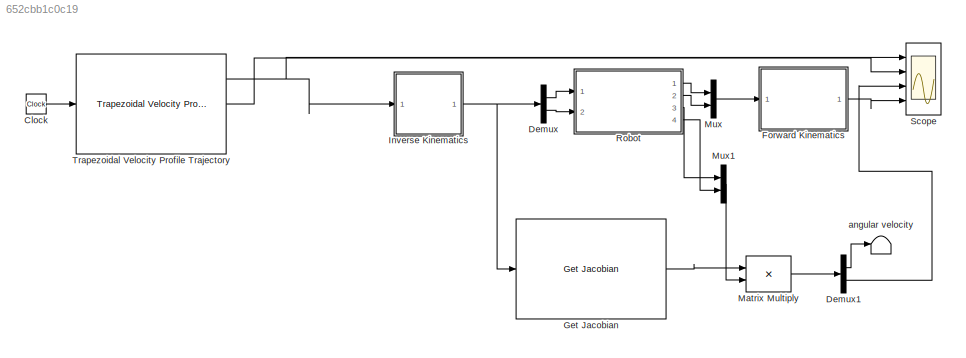
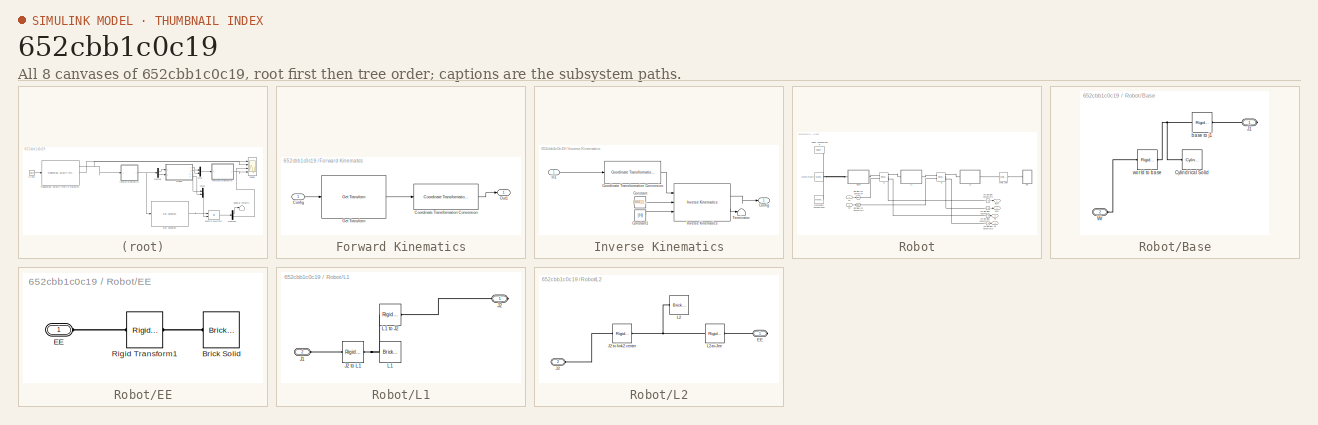
[diagram: thumbnail index - all 8 canvases of the model, root first then tree order]
MODEL slx_652cbb1c0c19
KIND model
CONFIG AbsTol = auto
CONFIG EnableMultiTasking = off
CONFIG FixedStep = auto
CONFIG MaxStep = auto
CONFIG MinStep = auto
CONFIG RelTol = 1e-3
CONFIG SampleTimeConstraint = Unconstrained
CONFIG SolverName = VariableStepAuto
CONFIG StartTime = 0.0
CONFIG StopTime = 10.0
BLOCK [Clock] Clock
BLOCK [Demux] Demux
  Outputs = 2
  Ports = [1, 2]
BLOCK [Demux] Demux1
  Outputs = 2
  Ports = [1, 2]
BLOCK [SubSystem] Forward Kinematics
  Ports = [1, 1]
  RequestExecContextInheritance = off
BLOCK [Inport] Forward Kinematics/Config
BLOCK [Reference] Forward Kinematics/Coordinate Transformation Conversion  REF=robotcorelib/Coordinate Transformation Conversion
  Ports = [1, 1]
  SourceBlock = robotcorelib/Coordinate Transformation Conversion
  SourceProductBaseCode = RO,NV,RR,UV
  SourceType = robotics.slcore.internal.block.CoordinateTransformationConversion
BLOCK [Reference] Forward Kinematics/Get Transform  REF=robotmaniplib/Get Transform
  Ports = [1, 1]
  SourceBlock = robotmaniplib/Get Transform
  SourceProductBaseCode = RO
  SourceType = Get Transform
BLOCK [Outport] Forward Kinematics/Out1
BLOCK [Reference] Get Jacobian  REF=robotmaniplib/Get Jacobian
  Ports = [1, 1]
  SourceBlock = robotmaniplib/Get Jacobian
  SourceProductBaseCode = RO
  SourceType = Get Jacobian
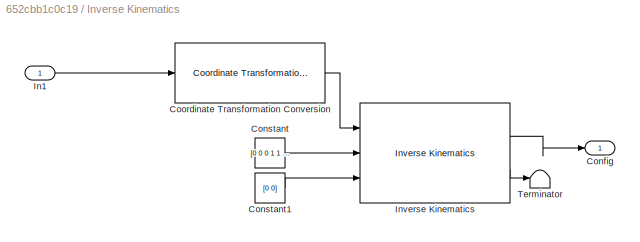
BLOCK [SubSystem] Inverse Kinematics
  Ports = [1, 1]
  RequestExecContextInheritance = off
BLOCK [Outport] Inverse Kinematics/Config
BLOCK [Constant] Inverse Kinematics/Constant
  Value = [0 0 0 1 1 1]
BLOCK [Constant] Inverse Kinematics/Constant1
  Value = [0 0]
BLOCK [Reference] Inverse Kinematics/Coordinate Transformation Conversion  REF=robotcorelib/Coordinate Transformation Conversion
  Ports = [1, 1]
  SourceBlock = robotcorelib/Coordinate Transformation Conversion
  SourceProductBaseCode = RO,NV,RR,UV
  SourceType = robotics.slcore.internal.block.CoordinateTransformationConversion
BLOCK [Inport] Inverse Kinematics/In1
BLOCK [Reference] Inverse Kinematics/Inverse Kinematics  REF=robotmaniplib/Inverse Kinematics
  Ports = [3, 2]
  SourceBlock = robotmaniplib/Inverse Kinematics
  SourceProductBaseCode = RO
  SourceType = Inverse Kinematics
BLOCK [Terminator] Inverse Kinematics/Terminator
BLOCK [Product] Matrix Multiply
  Multiplication = Matrix(*)
  Ports = [2, 1]
BLOCK [Mux] Mux
  DisplayOption = bar
  Inputs = 2
  Ports = [2, 1]
BLOCK [Mux] Mux1
  DisplayOption = bar
  Inputs = 2
  Ports = [2, 1]
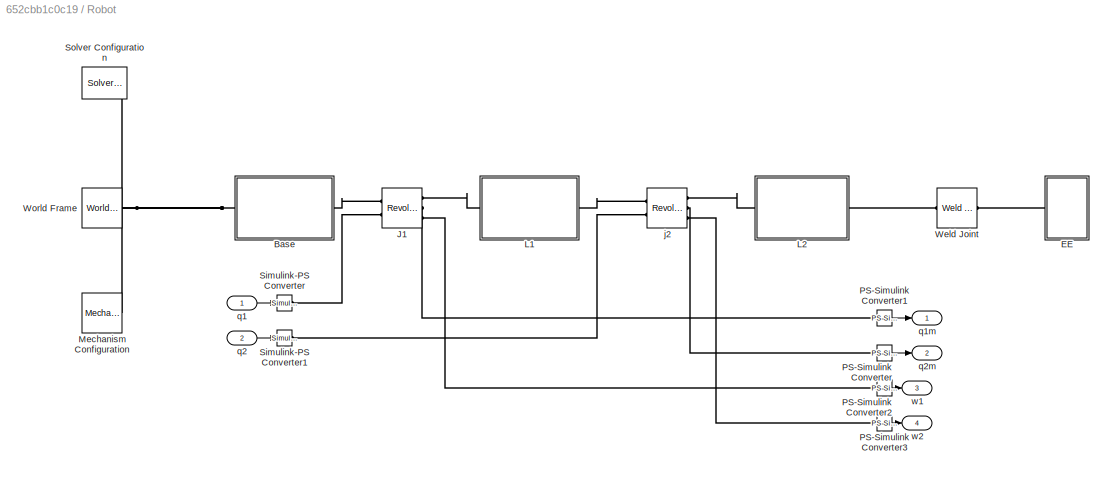
BLOCK [SubSystem] Robot
  Ports = [2, 4]
  RequestExecContextInheritance = off
BLOCK [SubSystem] Robot/Base
  Ports = [0, 0, 0, 0, 0, 1, 1]
  RequestExecContextInheritance = off
BLOCK [Reference] Robot/Base/Cylindrical Solid  REF=sm_lib/Body Elements/Cylindrical Solid
  Ports = [0, 0, 0, 0, 0, 0, 1]
  SourceBlock = sm_lib/Body Elements/Cylindrical Solid
  SourceProductBaseCode = MS
  SourceType = Cylindrical Solid
BLOCK [PMIOPort] Robot/Base/J1
  Side = Right
BLOCK [PMIOPort] Robot/Base/Wr
  Port = 2
  Side = Left
BLOCK [Reference] Robot/Base/base to j1  REF=sm_lib/Frames and
Transforms/Rigid
Transform
  Ports = [0, 0, 0, 0, 0, 1, 1]
  SourceBlock = sm_lib/Frames and\nTransforms/Rigid\nTransform
  SourceProductBaseCode = MS
  SourceType = Rigid\nTransform
BLOCK [Reference] Robot/Base/world to base  REF=sm_lib/Frames and
Transforms/Rigid
Transform
  Ports = [0, 0, 0, 0, 0, 1, 1]
  SourceBlock = sm_lib/Frames and\nTransforms/Rigid\nTransform
  SourceProductBaseCode = MS
  SourceType = Rigid\nTransform
BLOCK [SubSystem] Robot/EE
  Ports = [0, 0, 0, 0, 0, 1]
  RequestExecContextInheritance = off
BLOCK [Reference] Robot/EE/Brick Solid  REF=sm_lib/Body Elements/Brick Solid
  Ports = [0, 0, 0, 0, 0, 0, 1]
  SourceBlock = sm_lib/Body Elements/Brick Solid
  SourceProductBaseCode = MS
  SourceType = Brick Solid
BLOCK [PMIOPort] Robot/EE/EE
  Side = Left
BLOCK [Reference] Robot/EE/Rigid Transform1  REF=sm_lib/Frames and
Transforms/Rigid
Transform
  Ports = [0, 0, 0, 0, 0, 1, 1]
  SourceBlock = sm_lib/Frames and\nTransforms/Rigid\nTransform
  SourceProductBaseCode = MS
  SourceType = Rigid\nTransform
BLOCK [Reference] Robot/J1  REF=sm_lib/Joints/Revolute Joint
  Ports = [0, 0, 0, 0, 0, 2, 3]
  SourceBlock = sm_lib/Joints/Revolute Joint
  SourceProductBaseCode = MS
  SourceType = Revolute Joint
BLOCK [SubSystem] Robot/L1
  Ports = [0, 0, 0, 0, 0, 1, 1]
  RequestExecContextInheritance = off
BLOCK [PMIOPort] Robot/L1/J1
  Port = 2
  Side = Left
BLOCK [PMIOPort] Robot/L1/J2
  Side = Right
BLOCK [Reference] Robot/L1/J2 to L1  REF=sm_lib/Frames and
Transforms/Rigid
Transform
  Ports = [0, 0, 0, 0, 0, 1, 1]
  SourceBlock = sm_lib/Frames and\nTransforms/Rigid\nTransform
  SourceProductBaseCode = MS
  SourceType = Rigid\nTransform
BLOCK [Reference] Robot/L1/L1  REF=sm_lib/Body Elements/Brick Solid
  Ports = [0, 0, 0, 0, 0, 0, 1]
  SourceBlock = sm_lib/Body Elements/Brick Solid
  SourceProductBaseCode = MS
  SourceType = Brick Solid
BLOCK [Reference] Robot/L1/L1 to J2  REF=sm_lib/Frames and
Transforms/Rigid
Transform
  Ports = [0, 0, 0, 0, 0, 1, 1]
  SourceBlock = sm_lib/Frames and\nTransforms/Rigid\nTransform
  SourceProductBaseCode = MS
  SourceType = Rigid\nTransform
BLOCK [SubSystem] Robot/L2
  Ports = [0, 0, 0, 0, 0, 1, 1]
  RequestExecContextInheritance = off
BLOCK [PMIOPort] Robot/L2/EE
  Side = Right
BLOCK [PMIOPort] Robot/L2/J2
  Port = 2
  Side = Left
BLOCK [Reference] Robot/L2/J2 to link2 center  REF=sm_lib/Frames and
Transforms/Rigid
Transform
  Ports = [0, 0, 0, 0, 0, 1, 1]
  SourceBlock = sm_lib/Frames and\nTransforms/Rigid\nTransform
  SourceProductBaseCode = MS
  SourceType = Rigid\nTransform
BLOCK [Reference] Robot/L2/L2  REF=sm_lib/Body Elements/Brick Solid
  Ports = [0, 0, 0, 0, 0, 0, 1]
  SourceBlock = sm_lib/Body Elements/Brick Solid
  SourceProductBaseCode = MS
  SourceType = Brick Solid
BLOCK [Reference] Robot/L2/L2-to-Jee  REF=sm_lib/Frames and
Transforms/Rigid
Transform
  Ports = [0, 0, 0, 0, 0, 1, 1]
  SourceBlock = sm_lib/Frames and\nTransforms/Rigid\nTransform
  SourceProductBaseCode = MS
  SourceType = Rigid\nTransform
BLOCK [Reference] Robot/Mechanism Configuration  REF=sm_lib/Utilities/Mechanism
Configuration
  Ports = [0, 0, 0, 0, 0, 0, 1]
  SourceBlock = sm_lib/Utilities/Mechanism\nConfiguration
  SourceProductBaseCode = MS
  SourceType = Mechanism\nConfiguration
BLOCK [Reference] Robot/PS-Simulink Converter  REF=nesl_utility/PS-Simulink
Converter
  Ports = [0, 1, 0, 0, 0, 1]
  SourceBlock = nesl_utility/PS-Simulink\nConverter
  SourceProductBaseCode = SS,PW,VE
  SourceType = PS-Simulink\nConverter
BLOCK [Reference] Robot/PS-Simulink Converter1  REF=nesl_utility/PS-Simulink
Converter
  Ports = [0, 1, 0, 0, 0, 1]
  SourceBlock = nesl_utility/PS-Simulink\nConverter
  SourceProductBaseCode = SS,PW,VE
  SourceType = PS-Simulink\nConverter
BLOCK [Reference] Robot/PS-Simulink Converter2  REF=nesl_utility/PS-Simulink
Converter
  Ports = [0, 1, 0, 0, 0, 1]
  SourceBlock = nesl_utility/PS-Simulink\nConverter
  SourceProductBaseCode = SS,PW,VE
  SourceType = PS-Simulink\nConverter
BLOCK [Reference] Robot/PS-Simulink Converter3  REF=nesl_utility/PS-Simulink
Converter
  Ports = [0, 1, 0, 0, 0, 1]
  SourceBlock = nesl_utility/PS-Simulink\nConverter
  SourceProductBaseCode = SS,PW,VE
  SourceType = PS-Simulink\nConverter
BLOCK [Reference] Robot/Simulink-PS Converter  REF=nesl_utility/Simulink-PS
Converter
  Ports = [1, 0, 0, 0, 0, 0, 1]
  SourceBlock = nesl_utility/Simulink-PS\nConverter
  SourceProductBaseCode = SS,PW,VE
  SourceType = Simulink-PS\nConverter
BLOCK [Reference] Robot/Simulink-PS Converter1  REF=nesl_utility/Simulink-PS
Converter
  Ports = [1, 0, 0, 0, 0, 0, 1]
  SourceBlock = nesl_utility/Simulink-PS\nConverter
  SourceProductBaseCode = SS,PW,VE
  SourceType = Simulink-PS\nConverter
BLOCK [Reference] Robot/Solver Configuration  REF=nesl_utility/Solver
Configuration
  Ports = [0, 0, 0, 0, 0, 0, 1]
  SourceBlock = nesl_utility/Solver\nConfiguration
  SourceProductBaseCode = SS,PW,VE
  SourceType = Solver\nConfiguration
BLOCK [Reference] Robot/Weld Joint  REF=sm_lib/Joints/Weld Joint
  Ports = [0, 0, 0, 0, 0, 1, 1]
  SourceBlock = sm_lib/Joints/Weld Joint
  SourceProductBaseCode = MS
  SourceType = Weld Joint
BLOCK [Reference] Robot/World Frame  REF=sm_lib/Frames and
Transforms/World Frame
  Ports = [0, 0, 0, 0, 0, 0, 1]
  SourceBlock = sm_lib/Frames and\nTransforms/World Frame
  SourceProductBaseCode = MS
  SourceType = World Frame
BLOCK [Reference] Robot/j2  REF=sm_lib/Joints/Revolute Joint
  Ports = [0, 0, 0, 0, 0, 2, 3]
  SourceBlock = sm_lib/Joints/Revolute Joint
  SourceProductBaseCode = MS
  SourceType = Revolute Joint
BLOCK [Inport] Robot/q1
BLOCK [Outport] Robot/q1m
BLOCK [Inport] Robot/q2
  Port = 2
BLOCK [Outport] Robot/q2m
  Port = 2
BLOCK [Outport] Robot/w1
  Port = 3
BLOCK [Outport] Robot/w2
  Port = 4
BLOCK [Scope] Scope
  Floating = off
  NumInputPorts = 4
  Ports = [4]
  ScopeSpecificationString = Simulink.scopes.TimeScopeBlockCfg('CurrentConfiguration', extmgr.ConfigurationSet(extmgr.Configuration('Core','General UI',true),extmgr.Configuration('Core','Source UI',true),extmgr.Configuration('Sources','WiredSimulink',true),extmgr.Configuration('Visuals','Time Domain',true,'SerializedDisplays',{struct('MinYLimReal','-0.04375','MaxYLimReal','0.39375','YLabelReal','','MinYLimMag','0.00000','MaxY...<+3699ch>
BLOCK [Reference] Trapezoidal Velocity Profile Trajectory  REF=robotcorelib/Trapezoidal Velocity Profile Trajectory
  Ports = [1, 3]
  SourceBlock = robotcorelib/Trapezoidal Velocity Profile Trajectory
  SourceProductBaseCode = RO,NV,RR,UV
  SourceType = robotics.slcore.internal.block.TrapVelTrajSys
BLOCK [Terminator] angular velocity
LINE Clock:1 -> Trapezoidal Velocity Profile Trajectory:1
LINE Demux1:1 -> angular velocity:1
LINE Demux1:2 -> Scope:3
LINE Demux:1 -> Robot:1
LINE Demux:2 -> Robot:2
LINE Forward Kinematics/Config:1 -> Forward Kinematics/Get Transform:1
LINE Forward Kinematics/Coordinate Transformation Conversion:1 -> Forward Kinematics/Out1:1
LINE Forward Kinematics/Get Transform:1 -> Forward Kinematics/Coordinate Transformation Conversion:1
LINE Forward Kinematics:1 -> Scope:4
LINE Get Jacobian:1 -> Matrix Multiply:1
LINE Inverse Kinematics/Constant1:1 -> Inverse Kinematics/Inverse Kinematics:3
LINE Inverse Kinematics/Constant:1 -> Inverse Kinematics/Inverse Kinematics:2
LINE Inverse Kinematics/Coordinate Transformation Conversion:1 -> Inverse Kinematics/Inverse Kinematics:1
LINE Inverse Kinematics/In1:1 -> Inverse Kinematics/Coordinate Transformation Conversion:1
LINE Inverse Kinematics/Inverse Kinematics:1 -> Inverse Kinematics/Config:1
LINE Inverse Kinematics/Inverse Kinematics:2 -> Inverse Kinematics/Terminator:1
NET Inverse Kinematics:1 -> Demux:1, Get Jacobian:1
LINE Matrix Multiply:1 -> Demux1:1
LINE Mux1:1 -> Matrix Multiply:2
LINE Mux:1 -> Forward Kinematics:1
LINE Robot/PS-Simulink Converter1:1 -> Robot/q1m:1
LINE Robot/PS-Simulink Converter2:1 -> Robot/w1:1
LINE Robot/PS-Simulink Converter3:1 -> Robot/w2:1
LINE Robot/PS-Simulink Converter:1 -> Robot/q2m:1
LINE Robot/q1:1 -> Robot/Simulink-PS Converter:1
LINE Robot/q2:1 -> Robot/Simulink-PS Converter1:1
LINE Robot:1 -> Mux:1
LINE Robot:2 -> Mux:2
LINE Robot:3 -> Mux1:1
LINE Robot:4 -> Mux1:2
NET Trapezoidal Velocity Profile Trajectory:1 -> Inverse Kinematics:1, Scope:1
LINE Trapezoidal Velocity Profile Trajectory:2 -> Scope:2
PNET net1: Robot/Base/Cylindrical Solid:RConn1 -- Robot/Base/base to j1:LConn1 -- Robot/Base/world to base:RConn1
PLINE Robot/Base/J1:RConn1 -- Robot/Base/base to j1:RConn1
PLINE Robot/Base/Wr:RConn1 -- Robot/Base/world to base:LConn1
PNET net2: Robot/Base:LConn1 -- Robot/Mechanism Configuration:RConn1 -- Robot/Solver Configuration:RConn1 -- Robot/World Frame:RConn1
PLINE Robot/Base:RConn1 -- Robot/J1:LConn1
PLINE Robot/EE/Brick Solid:RConn1 -- Robot/EE/Rigid Transform1:RConn1
PLINE Robot/EE/EE:RConn1 -- Robot/EE/Rigid Transform1:LConn1
PLINE Robot/EE:LConn1 -- Robot/Weld Joint:RConn1
PLINE Robot/J1:LConn2 -- Robot/Simulink-PS Converter:RConn1
PLINE Robot/J1:RConn1 -- Robot/L1:LConn1
PLINE Robot/J1:RConn2 -- Robot/PS-Simulink Converter1:LConn1
PLINE Robot/J1:RConn3 -- Robot/PS-Simulink Converter2:LConn1
PLINE Robot/L1/J1:RConn1 -- Robot/L1/J2 to L1:LConn1
PNET net3: Robot/L1/J2 to L1:RConn1 -- Robot/L1/L1 to J2:LConn1 -- Robot/L1/L1:RConn1
PLINE Robot/L1/J2:RConn1 -- Robot/L1/L1 to J2:RConn1
PLINE Robot/L1:RConn1 -- Robot/j2:LConn1
PLINE Robot/L2/EE:RConn1 -- Robot/L2/L2-to-Jee:RConn1
PLINE Robot/L2/J2 to link2 center:LConn1 -- Robot/L2/J2:RConn1
PNET net4: Robot/L2/J2 to link2 center:RConn1 -- Robot/L2/L2-to-Jee:LConn1 -- Robot/L2/L2:RConn1
PLINE Robot/L2:LConn1 -- Robot/j2:RConn1
PLINE Robot/L2:RConn1 -- Robot/Weld Joint:LConn1
PLINE Robot/PS-Simulink Converter3:LConn1 -- Robot/j2:RConn3
PLINE Robot/PS-Simulink Converter:LConn1 -- Robot/j2:RConn2
PLINE Robot/Simulink-PS Converter1:RConn1 -- Robot/j2:LConn2
note: NET lines group one-source signal fan-out (src -> all destinations, sorted); 1:1 wires keep LINE; PNET lines group multi-terminal physical nets as a canonical sorted terminal list (undirected conserving connections); 2-terminal nets keep the pairwise PLINE form
